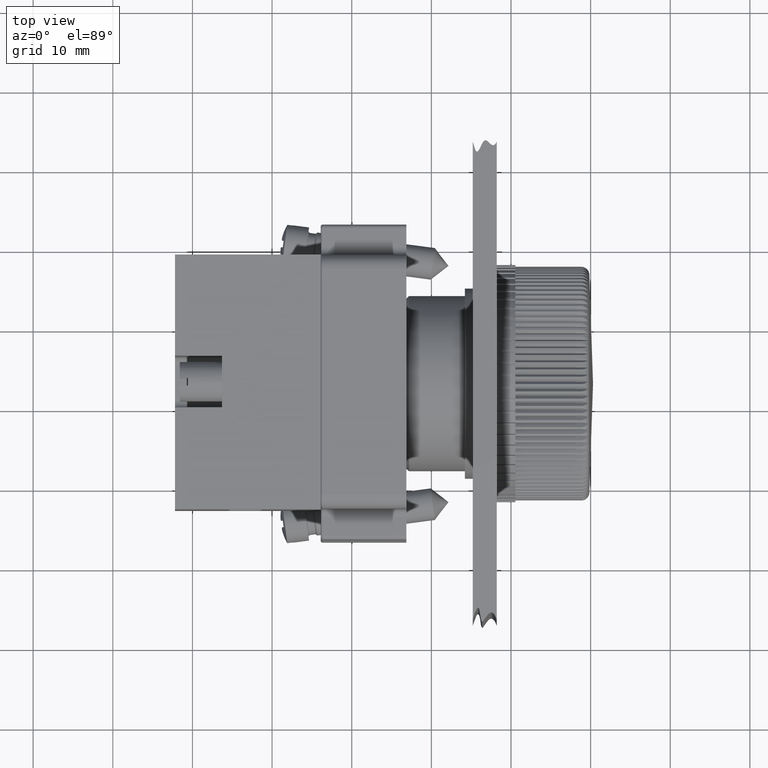
[diagram: clean part render]
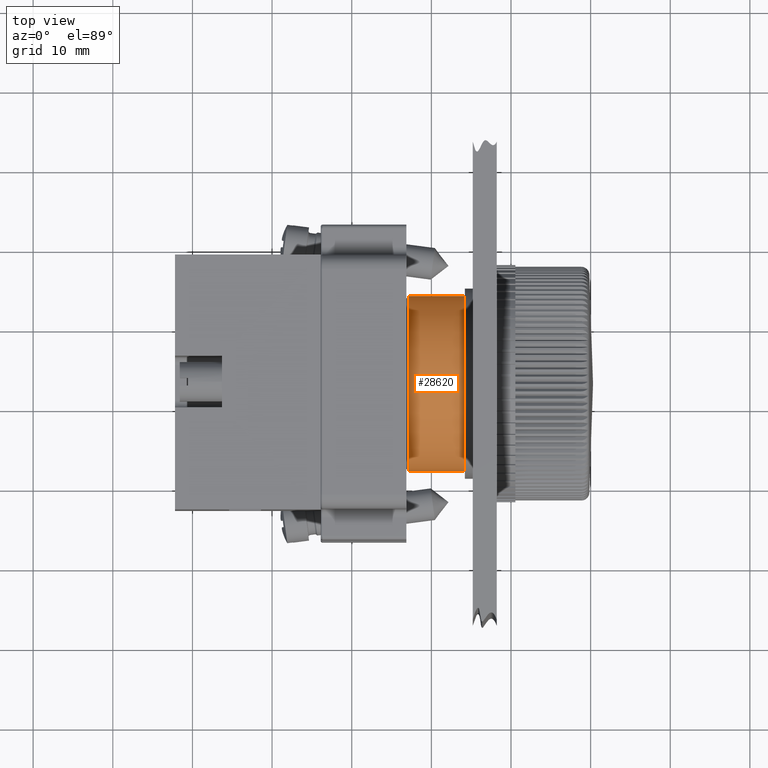
[diagram: same view with one face highlighted and labeled with its STEP entity id]
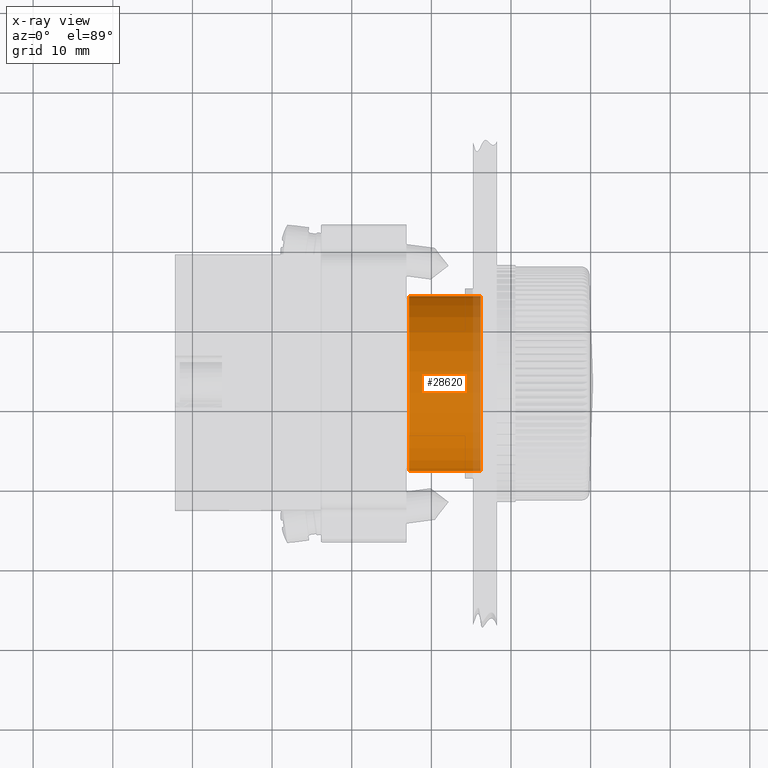
[diagram: x-ray of the same camera — body ghosted, the highlighted face saturated]
A machine part, top view. The second image highlights one B-rep face of the part: STEP entity #28620.
The next image is the same camera in x-ray: the body ghosted, the highlighted face saturated — about 11% of this face is hidden behind the body in this view.
In plain terms, the highlighted cylindrical surface (bore or boss wall) has radius 11 mm, axis along (1, -0, 0).
Its self-contained STEP definition (entity closure, byte-faithful):
#28586=CARTESIAN_POINT('',(-7.620487727888719,10.447592554101199,0.0));
#28587=VERTEX_POINT('',#28586);
#28588=CARTESIAN_POINT('',(-7.620487727888721,-0.552407445898802,0.0));
#28589=DIRECTION('',(1.0,0.0,0.0));
#28590=DIRECTION('',(0.0,1.0,0.0));
#28591=AXIS2_PLACEMENT_3D('',#28588,#28589,#28590);
#28592=CIRCLE('',#28591,11.0);
#28593=EDGE_CURVE('',#28587,#28587,#28592,.T.);
#28601=CARTESIAN_POINT('',(0.378574706998074,-0.552407445898802,0.0));
#28602=DIRECTION('',(1.0,0.0,0.0));
#28603=DIRECTION('',(0.0,1.0,0.0));
#28604=AXIS2_PLACEMENT_3D('',#28601,#28602,#28603);
#28605=CYLINDRICAL_SURFACE('',#28604,11.000000000000004);
#28606=ORIENTED_EDGE('',*,*,#28593,.T.);
#28607=EDGE_LOOP('',(#28606));
#28608=FACE_OUTER_BOUND('',#28607,.T.);
#28609=CARTESIAN_POINT('',(1.377637141884864,10.447592554101204,0.0));
#28610=VERTEX_POINT('',#28609);
#28611=CARTESIAN_POINT('',(1.377637141884864,-0.552407445898802,0.0));
#28612=DIRECTION('',(1.0,0.0,0.0));
#28613=DIRECTION('',(0.0,1.0,0.0));
#28614=AXIS2_PLACEMENT_3D('',#28611,#28612,#28613);
#28615=CIRCLE('',#28614,11.000000000000005);
#28616=EDGE_CURVE('',#28610,#28610,#28615,.T.);
#28617=ORIENTED_EDGE('',*,*,#28616,.F.);
#28618=EDGE_LOOP('',(#28617));
#28619=FACE_BOUND('',#28618,.T.);
#28620=ADVANCED_FACE('',(#28608,#28619),#28605,.T.);